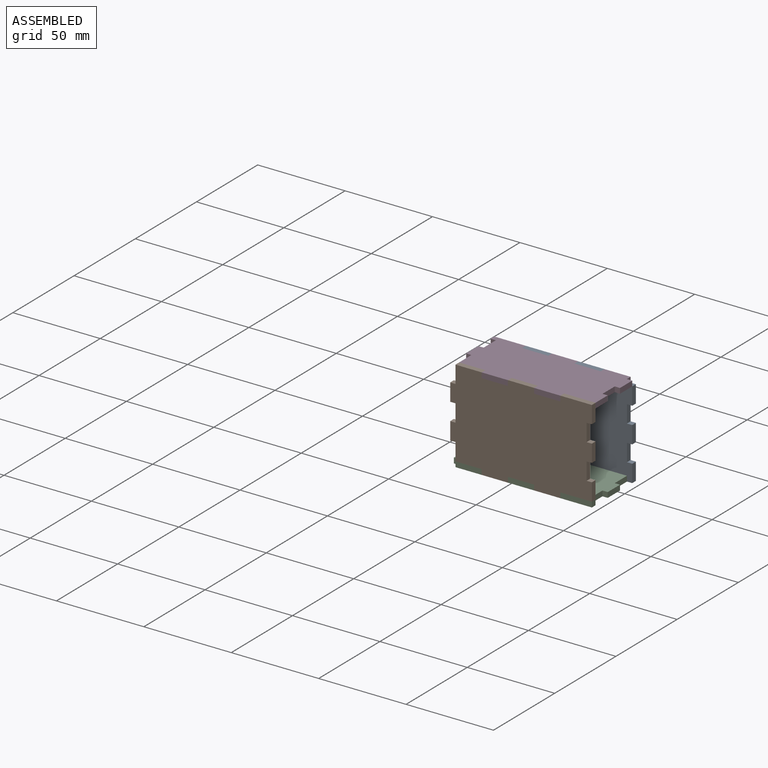
[diagram: assembled view]
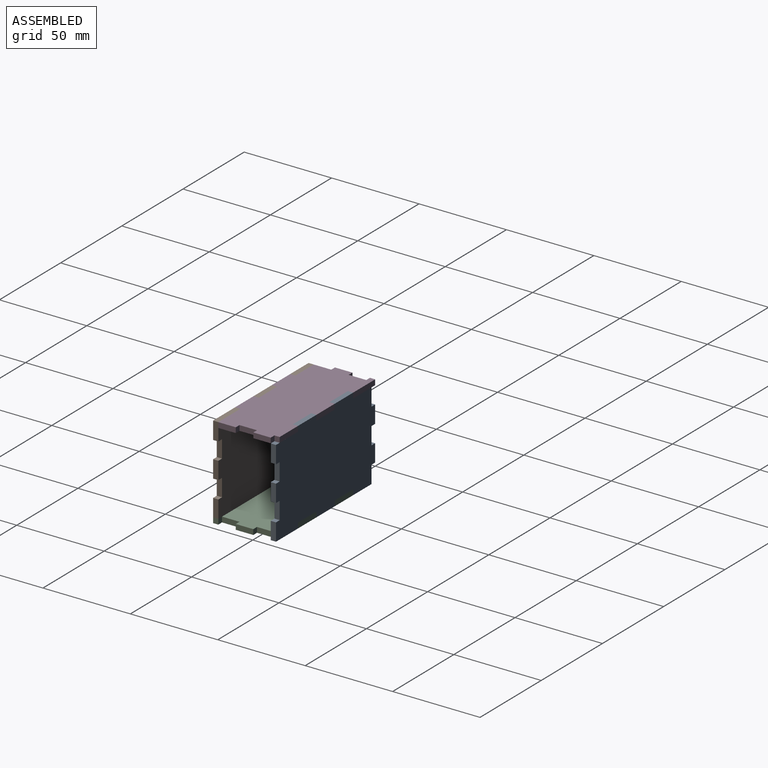
[diagram: assembled view, second angle]
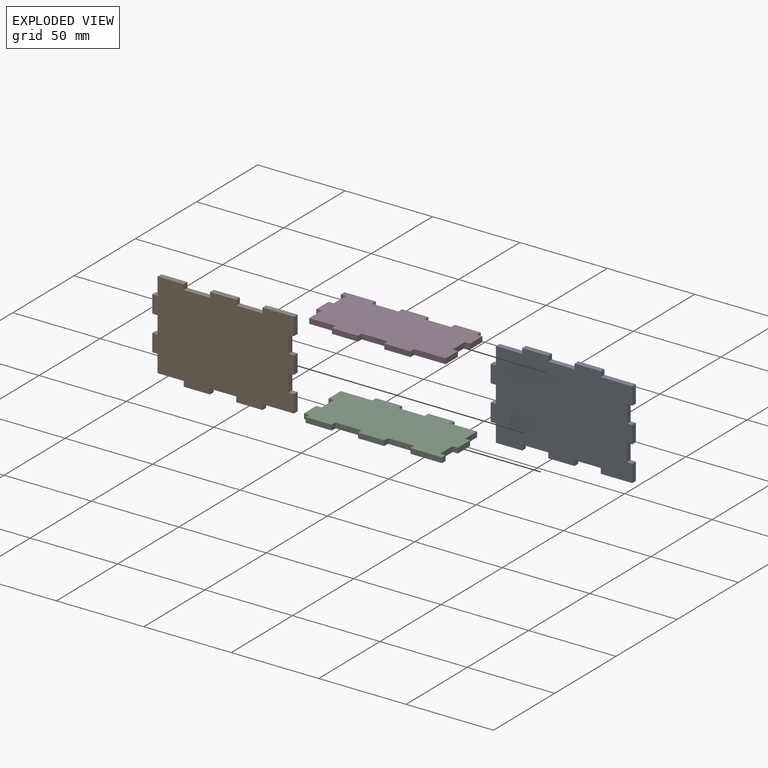
[diagram: exploded view]
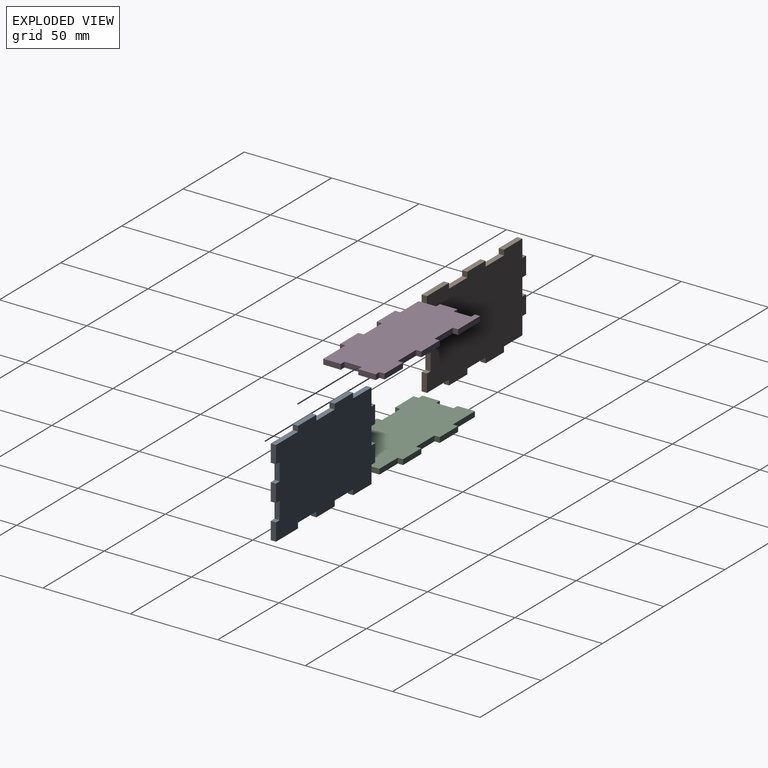
[diagram: exploded view, second angle]
ASSEMBLY  parts=4 mates=3
PART A: 38 faces, bbox 81x3x53 mm
  f0: plane 10x3mm, normal (-1,0,0), area 30mm2, adj f1,f35,f36,f37
  f1: plane 3x3mm, normal (0,0,1), area 9mm2, adj f0,f2,f36,f37
  f2: plane 10x3mm, normal (-1,0,0), area 30mm2, adj f1,f3,f36,f37
  f3: plane 3x3mm, normal (0,0,-1), area 9mm2, adj f2,f4,f36,f37
  f4: plane 10x3mm, normal (-1,0,0), area 30mm2, adj f3,f5,f36,f37
  f5: plane 3x3mm, normal (0,0,1), area 9mm2, adj f4,f6,f36,f37
  f6: plane 10x3mm, normal (-1,0,0), area 30mm2, adj f5,f7,f36,f37
  f7: plane 3x3mm, normal (0,0,-1), area 9mm2, adj f6,f8,f36,f37
  f8: plane 10x3mm, normal (-1,0,0), area 30mm2, adj f7,f9,f36,f37
  f9: plane 15x3mm, normal (0,0,-1), area 45mm2, adj f8,f10,f36,f37
  f10: plane 3x3mm, normal (1,0,0), area 9mm2, adj f9,f11,f36,f37
  f11: plane 15x3mm, normal (0,0,-1), area 45mm2, adj f10,f12,f36,f37
  f12: plane 3x3mm, normal (-1,0,0), area 9mm2, adj f11,f13,f36,f37
  f13: plane 15x3mm, normal (0,0,-1), area 45mm2, adj f12,f14,f36,f37
  f14: plane 3x3mm, normal (1,0,0), area 9mm2, adj f13,f15,f36,f37
  f15: plane 15x3mm, normal (0,0,-1), area 45mm2, adj f14,f16,f36,f37
  f16: plane 3x3mm, normal (-1,0,0), area 9mm2, adj f15,f17,f36,f37
  f17: plane 18x3mm, normal (0,0,-1), area 54mm2, adj f16,f18,f36,f37
  f18: plane 10x3mm, normal (1,0,0), area 30mm2, adj f17,f19,f36,f37
  f19: plane 3x3mm, normal (0,0,1), area 9mm2, adj f18,f20,f36,f37
  f20: plane 10x3mm, normal (1,0,0), area 30mm2, adj f19,f21,f36,f37
  f21: plane 3x3mm, normal (0,0,-1), area 9mm2, adj f20,f22,f36,f37
  f22: plane 10x3mm, normal (1,0,0), area 30mm2, adj f21,f23,f36,f37
  f23: plane 3x3mm, normal (0,0,1), area 9mm2, adj f22,f24,f36,f37
  f24: plane 10x3mm, normal (1,0,0), area 30mm2, adj f23,f25,f36,f37
  f25: plane 3x3mm, normal (0,0,-1), area 9mm2, adj f24,f26,f36,f37
  f26: plane 10x3mm, normal (1,0,0), area 30mm2, adj f25,f27,f36,f37
  f27: plane 18x3mm, normal (0,0,1), area 54mm2, adj f26,f28,f36,f37
  f28: plane 3x3mm, normal (1,0,0), area 9mm2, adj f27,f29,f36,f37
  f29: plane 15x3mm, normal (0,0,1), area 45mm2, adj f28,f30,f36,f37
  f30: plane 3x3mm, normal (-1,0,0), area 9mm2, adj f29,f31,f36,f37
  f31: plane 15x3mm, normal (0,0,1), area 45mm2, adj f30,f32,f36,f37
  f32: plane 3x3mm, normal (1,0,0), area 9mm2, adj f31,f33,f36,f37
  f33: plane 15x3mm, normal (0,0,1), area 45mm2, adj f32,f34,f36,f37
  f34: plane 3x3mm, normal (-1,0,0), area 9mm2, adj f33,f35,f36,f37
  f35: plane 15x3mm, normal (0,0,1), area 45mm2, adj f0,f34,f36,f37
  f36: plane 81x53mm, normal (0,-1,0), area 3900mm2, adj f0,f1,f2,f3,f4,f5,f6,f7
  f37: plane 81x53mm, normal (0,1,0), area 3900mm2, adj f0,f1,f2,f3,f4,f5,f6,f7
PART B: same geometry as A
PART C: 34 faces, bbox 81x36x3 mm
  f0: plane 15x3mm, normal (0,1,0), area 45mm2, adj f1,f31,f32,f33
  f1: plane 3x3mm, normal (-1,0,0), area 9mm2, adj f0,f2,f32,f33
  f2: plane 15x3mm, normal (0,1,0), area 45mm2, adj f1,f3,f32,f33
  f3: plane 3x3mm, normal (1,0,0), area 9mm2, adj f2,f4,f32,f33
  f4: plane 18x3mm, normal (0,1,0), area 54mm2, adj f3,f5,f32,f33
  f5: plane 3x3mm, normal (-1,0,0), area 9mm2, adj f4,f6,f32,f33
  f6: plane 3x3mm, normal (0,-1,0), area 9mm2, adj f5,f7,f32,f33
  f7: plane 10x3mm, normal (-1,0,0), area 30mm2, adj f6,f8,f32,f33
  f8: plane 3x3mm, normal (0,1,0), area 9mm2, adj f7,f9,f32,f33
  f9: plane 10x3mm, normal (-1,0,0), area 30mm2, adj f8,f10,f32,f33
  f10: plane 3x3mm, normal (0,-1,0), area 9mm2, adj f9,f11,f32,f33
  f11: plane 10x3mm, normal (-1,0,0), area 30mm2, adj f10,f12,f32,f33
  f12: plane 15x3mm, normal (0,-1,0), area 45mm2, adj f11,f13,f32,f33
  f13: plane 3x3mm, normal (-1,0,0), area 9mm2, adj f12,f14,f32,f33
  f14: plane 15x3mm, normal (0,-1,0), area 45mm2, adj f13,f15,f32,f33
  f15: plane 3x3mm, normal (1,0,0), area 9mm2, adj f14,f16,f32,f33
  f16: plane 15x3mm, normal (0,-1,0), area 45mm2, adj f15,f17,f32,f33
  f17: plane 3x3mm, normal (-1,0,0), area 9mm2, adj f16,f18,f32,f33
  f18: plane 15x3mm, normal (0,-1,0), area 45mm2, adj f17,f19,f32,f33
  f19: plane 3x3mm, normal (1,0,0), area 9mm2, adj f18,f20,f32,f33
  f20: plane 18x3mm, normal (0,-1,0), area 54mm2, adj f19,f21,f32,f33
  f21: plane 10x3mm, normal (1,0,0), area 30mm2, adj f20,f22,f32,f33
  f22: plane 3x3mm, normal (0,1,0), area 9mm2, adj f21,f23,f32,f33
  f23: plane 10x3mm, normal (1,0,0), area 30mm2, adj f22,f24,f32,f33
  f24: plane 3x3mm, normal (0,-1,0), area 9mm2, adj f23,f25,f32,f33
  f25: plane 10x3mm, normal (1,0,0), area 30mm2, adj f24,f26,f32,f33
  f26: plane 3x3mm, normal (0,1,0), area 9mm2, adj f25,f27,f32,f33
  f27: plane 3x3mm, normal (1,0,0), area 9mm2, adj f26,f28,f32,f33
  f28: plane 15x3mm, normal (0,1,0), area 45mm2, adj f27,f29,f32,f33
  f29: plane 3x3mm, normal (-1,0,0), area 9mm2, adj f28,f30,f32,f33
  f30: plane 15x3mm, normal (0,1,0), area 45mm2, adj f29,f31,f32,f33
  f31: plane 3x3mm, normal (1,0,0), area 9mm2, adj f0,f30,f32,f33
  f32: plane 81x36mm, normal (0,0,-1), area 2574mm2, adj f0,f1,f2,f3,f4,f5,f6,f7
  f33: plane 81x36mm, normal (0,0,1), area 2574mm2, adj f0,f1,f2,f3,f4,f5,f6,f7
PART D: same geometry as C
PLACE A t=(9.05,61.95,-218.42)mm
PLACE B rot(axis=(-1,0,0),180deg) t=(9.05,25.95,-215.42)mm
PLACE C rot(axis=(0,0,1),180deg) t=(6.05,25.95,-268.42)mm
PLACE D rot(axis=(0.11,-0.91,-0.4),0deg) t=(9.05,61.95,-218.42)mm
MATE fastened D.f17 <-> B.f14  axis (-1,0,0) through (15.05,27.45,-191.92)mm
MATE fastened A.f34 <-> D.f3  axis (-1,0,0) through (-14.95,60.45,-191.92)mm
MATE fastened C.f15 <-> A.f14  axis (-1,0,0) through (15.05,60.45,-241.92)mm
